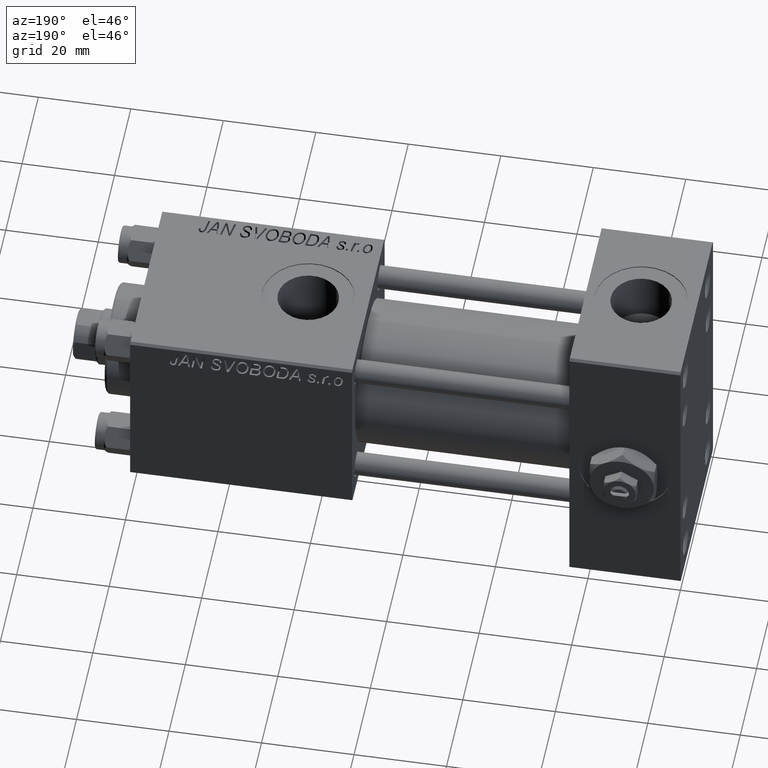
[diagram: clean part render]
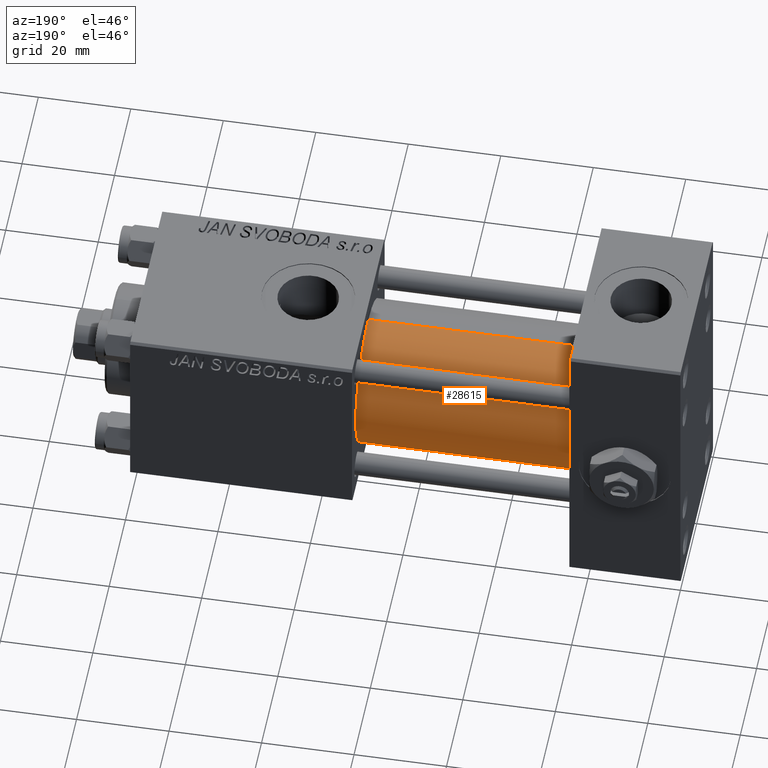
[diagram: same view with one face highlighted and labeled with its STEP entity id]
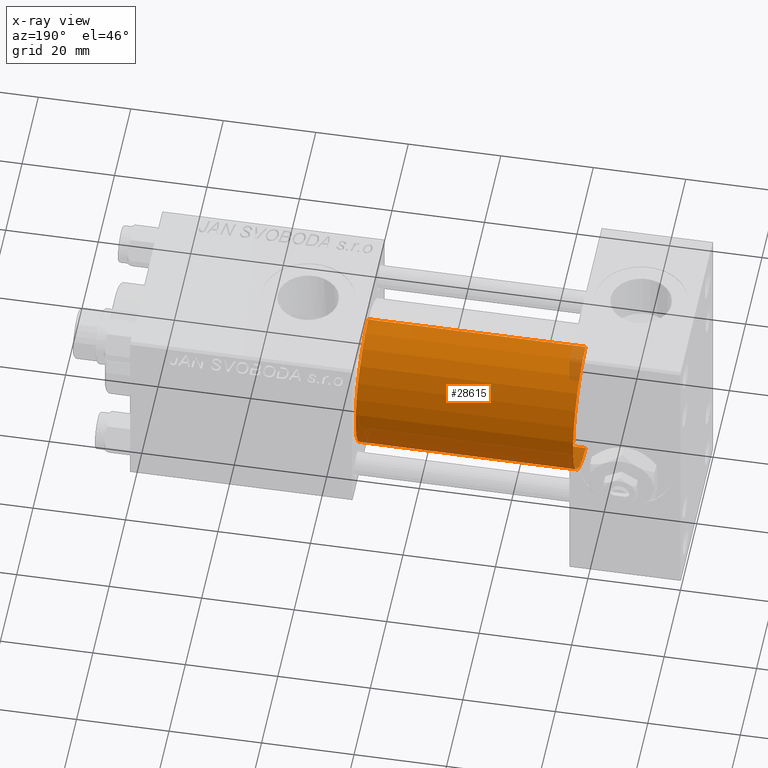
[diagram: x-ray of the same camera — body ghosted, the highlighted face saturated]
A machine part, auxiliary view. The second image highlights one B-rep face of the part: STEP entity #28615.
The next image is the same camera in x-ray: the body ghosted, the highlighted face saturated — about 2% of this face is hidden behind the body in this view.
In plain terms, the highlighted cylindrical surface (partial cylindrical patch) has radius 15.5 mm, axis along (-1, -0, -0).
Its self-contained STEP definition (entity closure, byte-faithful):
#1631 = CARTESIAN_POINT ( 'NONE',  ( 71.00000000000001421, -7.038826752868131828E-16, -15.50000000000000000 ) ) ;
#1750 = DIRECTION ( 'NONE',  ( 0.000000000000000000, 0.000000000000000000, -1.000000000000000000 ) ) ;
#1847 = DIRECTION ( 'NONE',  ( -1.000000000000000000, -0.000000000000000000, -0.000000000000000000 ) ) ;
#2730 = CARTESIAN_POINT ( 'NONE',  ( 24.00000000000000000, -2.602085213965210642E-15, 0.000000000000000000 ) ) ;
#3144 = VECTOR ( 'NONE', #40705, 1000.000000000000000 ) ;
#3245 = DIRECTION ( 'NONE',  ( 1.000000000000000000, 0.000000000000000000, 0.000000000000000000 ) ) ;
#6648 = DIRECTION ( 'NONE',  ( 0.000000000000000000, 0.000000000000000000, 1.000000000000000000 ) ) ;
#7524 = ORIENTED_EDGE ( 'NONE', *, *, #46355, .T. ) ;
#8443 = CARTESIAN_POINT ( 'NONE',  ( 71.00000000000001421, -2.602085213965210642E-15, 15.50000000000000000 ) ) ;
#9437 = EDGE_CURVE ( 'NONE', #29835, #35826, #32369, .T. ) ;
#11862 = VERTEX_POINT ( 'NONE', #20538 ) ;
#12516 = CIRCLE ( 'NONE', #38340, 15.50000000000000000 ) ;
#13316 = EDGE_CURVE ( 'NONE', #11862, #35826, #12516, .T. ) ;
#18567 = CYLINDRICAL_SURFACE ( 'NONE', #25872, 15.50000000000000000 ) ;
#20188 = AXIS2_PLACEMENT_3D ( 'NONE', #41976, #21390, #1750 ) ;
#20239 = ORIENTED_EDGE ( 'NONE', *, *, #13316, .T. ) ;
#20538 = CARTESIAN_POINT ( 'NONE',  ( 24.00000000000000000, -7.038826752868131828E-16, -15.50000000000000000 ) ) ;
#20723 = EDGE_CURVE ( 'NONE', #20928, #29835, #36013, .T. ) ;
#20928 = VERTEX_POINT ( 'NONE', #1631 ) ;
#21390 = DIRECTION ( 'NONE',  ( 1.000000000000000000, 0.000000000000000000, 0.000000000000000000 ) ) ;
#21942 = DIRECTION ( 'NONE',  ( -1.000000000000000000, -0.000000000000000000, -0.000000000000000000 ) ) ;
#25872 = AXIS2_PLACEMENT_3D ( 'NONE', #38404, #1847, #42075 ) ;
#28615 = ADVANCED_FACE ( 'NONE', ( #38155 ), #18567, .T. ) ;
#29835 = VERTEX_POINT ( 'NONE', #8443 ) ;
#32369 = LINE ( 'NONE', #39657, #3144 ) ;
#33457 = EDGE_LOOP ( 'NONE', ( #34966, #7524, #20239, #49654 ) ) ;
#34966 = ORIENTED_EDGE ( 'NONE', *, *, #20723, .F. ) ;
#35826 = VERTEX_POINT ( 'NONE', #48364 ) ;
#36013 = CIRCLE ( 'NONE', #20188, 15.50000000000000000 ) ;
#37232 = VECTOR ( 'NONE', #21942, 1000.000000000000000 ) ;
#38155 = FACE_OUTER_BOUND ( 'NONE', #33457, .T. ) ;
#38340 = AXIS2_PLACEMENT_3D ( 'NONE', #2730, #3245, #6648 ) ;
#38404 = CARTESIAN_POINT ( 'NONE',  ( 71.00000000000001421, -2.602085213965210642E-15, 0.000000000000000000 ) ) ;
#39657 = CARTESIAN_POINT ( 'NONE',  ( 71.00000000000001421, -2.602085213965210642E-15, 15.50000000000000000 ) ) ;
#40705 = DIRECTION ( 'NONE',  ( -1.000000000000000000, -0.000000000000000000, -0.000000000000000000 ) ) ;
#41012 = LINE ( 'NONE', #49325, #37232 ) ;
#41976 = CARTESIAN_POINT ( 'NONE',  ( 71.00000000000001421, -2.602085213965210642E-15, 0.000000000000000000 ) ) ;
#42075 = DIRECTION ( 'NONE',  ( 0.000000000000000000, 0.000000000000000000, 1.000000000000000000 ) ) ;
#46355 = EDGE_CURVE ( 'NONE', #20928, #11862, #41012, .T. ) ;
#48364 = CARTESIAN_POINT ( 'NONE',  ( 24.00000000000000000, -2.602085213965210642E-15, 15.50000000000000000 ) ) ;
#49325 = CARTESIAN_POINT ( 'NONE',  ( 71.00000000000001421, -7.038826752868131828E-16, -15.50000000000000000 ) ) ;
#49654 = ORIENTED_EDGE ( 'NONE', *, *, #9437, .F. ) ;